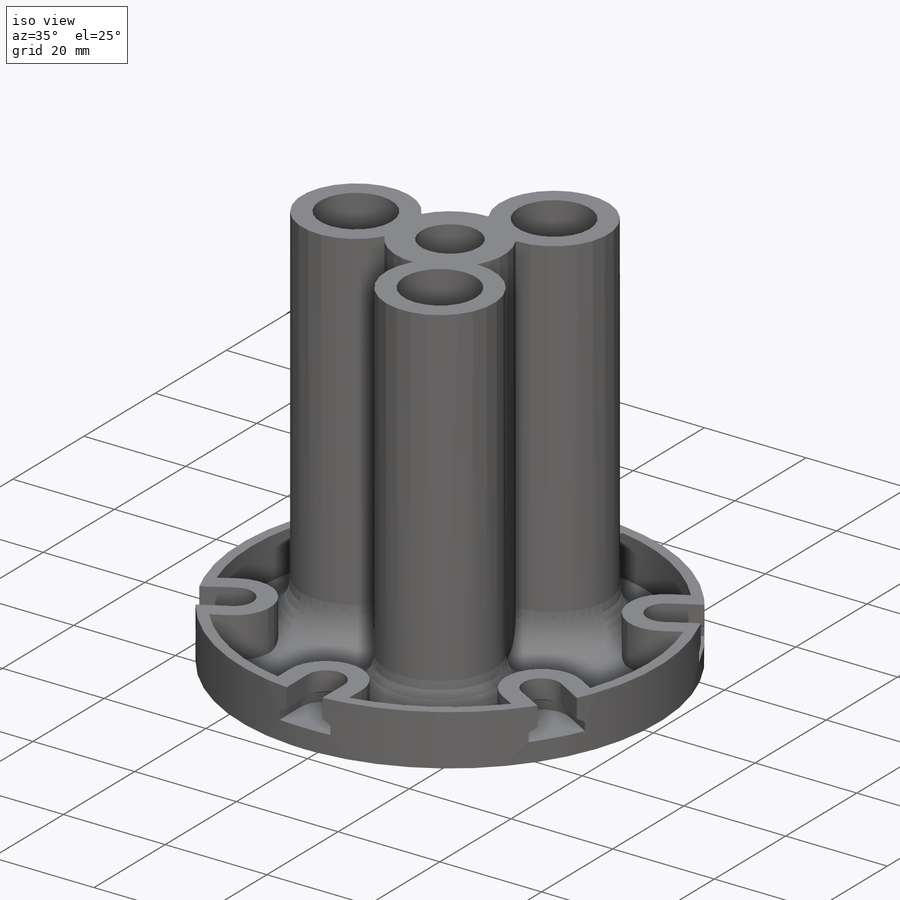
[diagram: iso view]
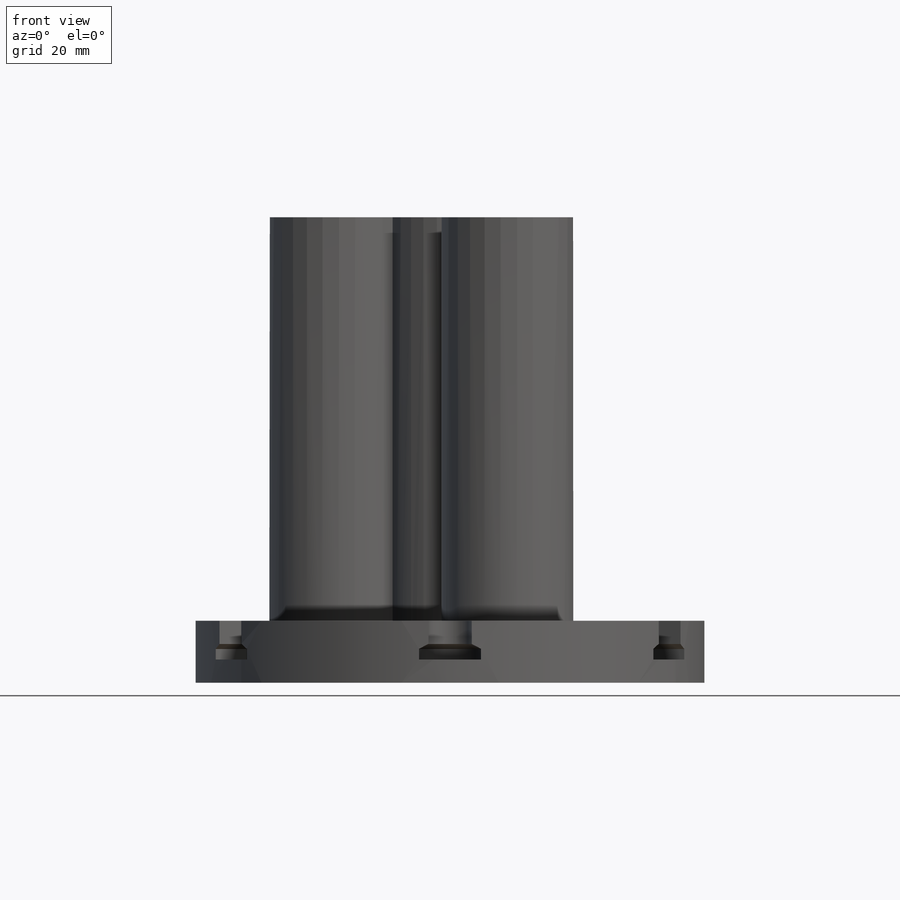
[diagram: front view]
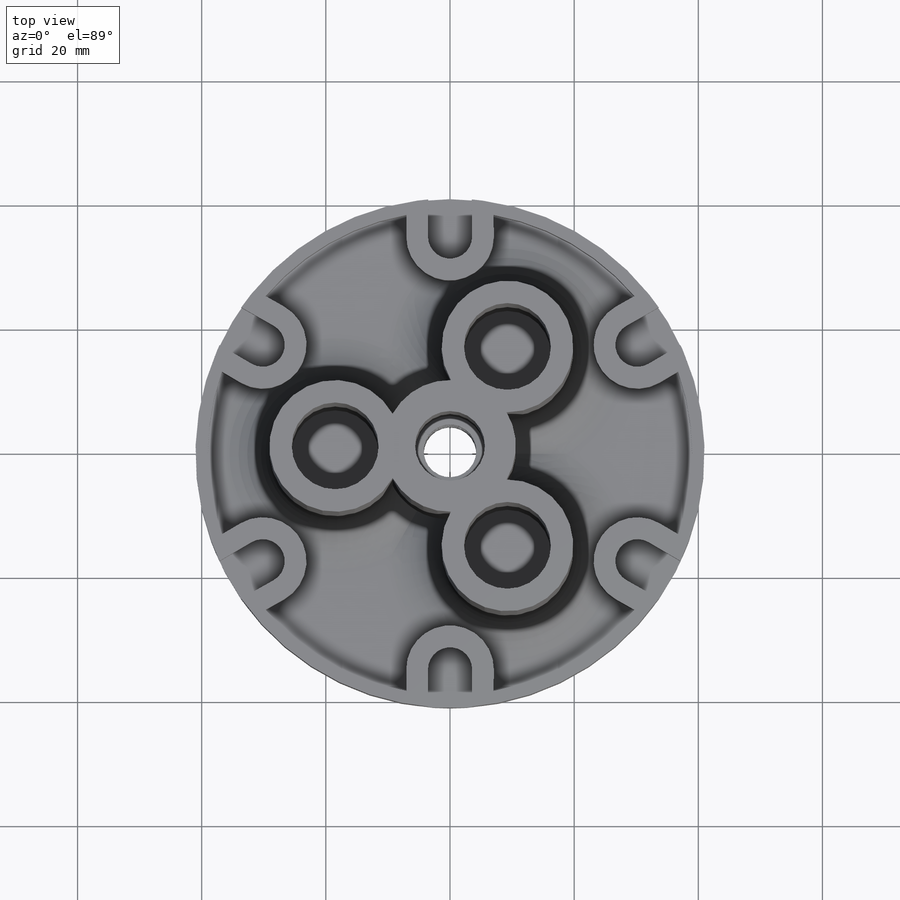
[diagram: top view]
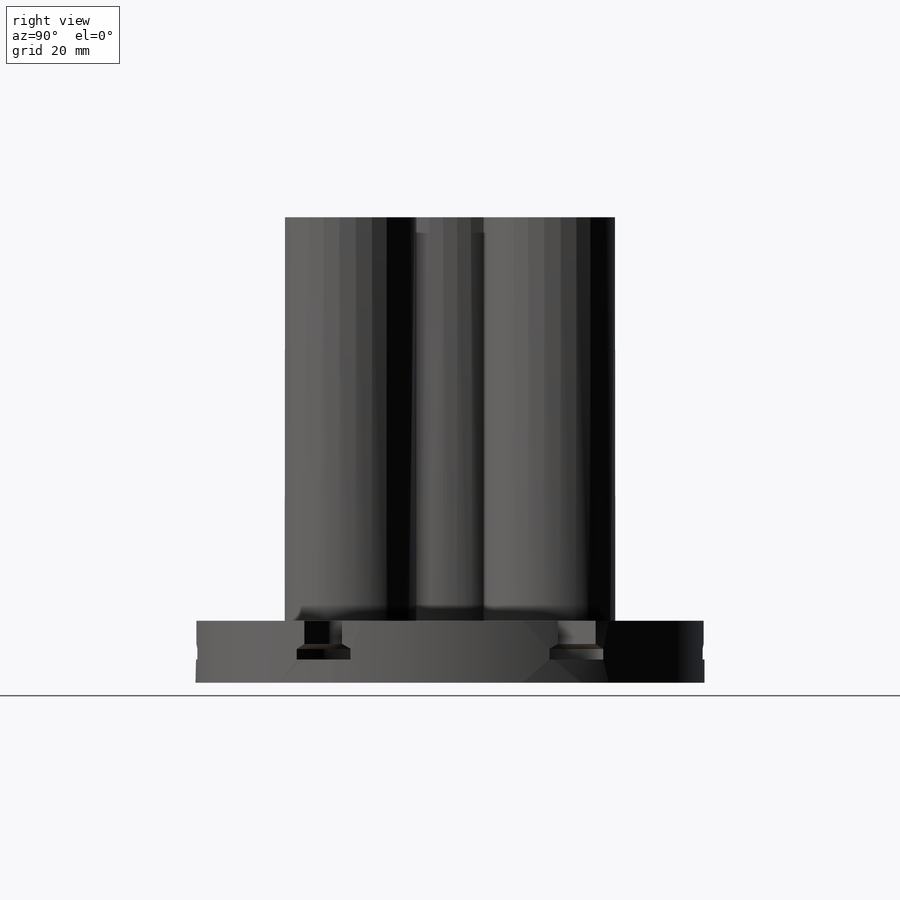
[diagram: right view]
SOLIDWORKS PART (.sldprt)
format: sldprt  version: not decoded by parser v0  size: 972,800 bytes
history: native  units: mm
features: sketch x13, cut_extrude x7, extrude x2, sweep x2, plane x2, material x1, helix x1, pattern_circular x1, fillet x1 (+12 scaffold rows collapsed)
feature tree (42):
  scaffold x12  (default folders/planes/origin — collapsed)
  material  "Material <not specified>"
  sketch  "Sketch1"  dims[D1=82.0mm]
  extrude  "Boss-Extrude1"  Depth=10mm
  sketch  "Sketch29"  dims[c1.D4=~17.988917mm c1.D1=~9.379604mm c1.D2=~9.862534mm c2.D1=15.0mm c2.D2=15.0mm c2.D3=18.5mm c2.D4=~16.359866mm c3.D4=3.0]
  extrude  "Boss-Extrude2"  Depth=65mm
  sketch  "Sketch2"  dims[D1=10.2mm]
  cut_extrude  "Cut-Extrude1"  Depth=65mm
  sketch  "Sketch5"  dims[D1=10.2mm]
  helix  "Helix/Spiral2"  Pitch=30mm
  sketch  "Sketch8"  dims[c1.D1=0.85mm c1.D2=1.5mm c2.D2=29.0deg c2.D3=1.5mm c3.D3=75.5deg c3.D4=1.0mm c3.D5=~0.838072mm c4.D4=0.85mm]
  sketch  "Sketch30"  dims[D1=11.25mm]
  cut_extrude  "Cut-Extrude17"  Depth=45mm
  sweep  "Sweep1"
  sketch  "Sketch10"
  plane  "Plane1"
  plane  "Plane3"
  sketch  "Sketch17"
  sweep  "Cut-Sweep10"
  sketch  "Sketch31"
  cut_extrude  "Cut-Extrude18"  Depth=45mm
  sketch  "Sketch32"  dims[D1=82.0mm]
  cut_extrude  "Cut-Extrude19"  Depth=45mm
  sketch  "Sketch27"  dims[D1=0.0mm D2=0.0mm]
  cut_extrude  "Cut-Extrude15"  Depth=6.25mm
  pattern_circular  "CirPattern2"  Count=6 Angle=60deg
  sketch  "Sketch28"  dims[c1.D1=82.0mm c1.D2=13.0mm c2.D1=0.0mm c2.D2=2.0mm c3.D1=6.0]
  cut_extrude  "Cut-Extrude16"  Depth=8mm
  fillet  "Fillet1"  Radius=8mm
  sketch  "Sketch33"  dims[D2=14.0mm D3=14.0mm D4=~32.04294mm D1=0.0mm]
  cut_extrude  "Cut-Extrude20"  [1 undecoded]
decode coverage: 21 of 27 modeling features carry decoded parameters
note: ~ marks probable driven/reference dimensions
note: 1 parameter value undecoded
note: suppression state not decoded; provenance and decode notes live in map.json
